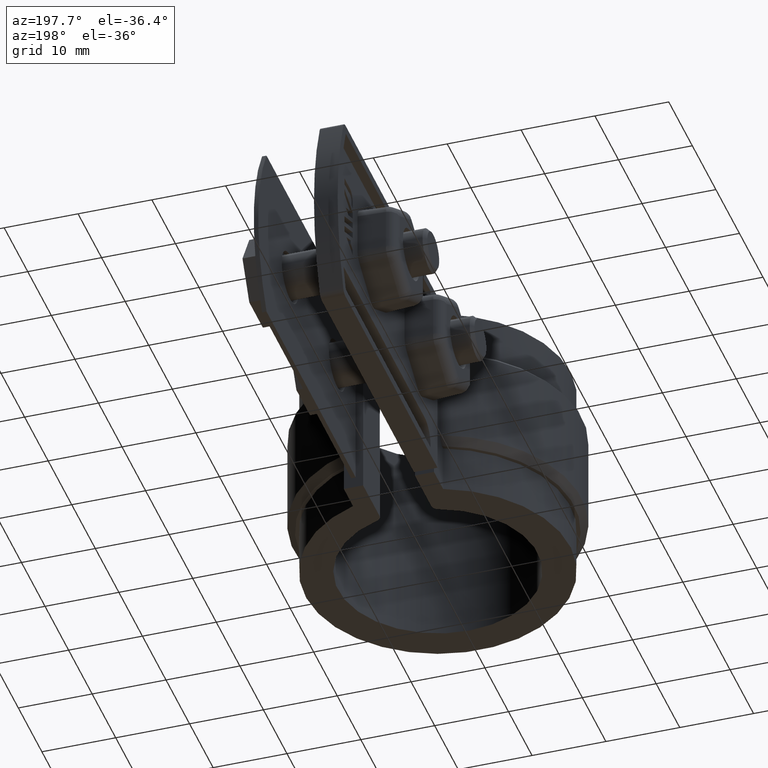
[diagram: clean part render]
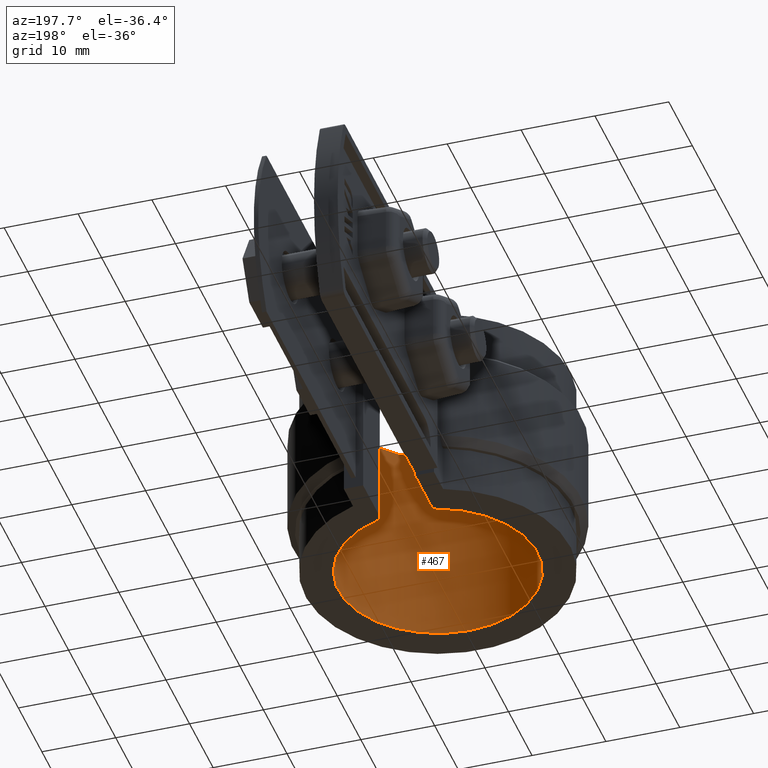
[diagram: same view with one face highlighted and labeled with its STEP entity id]
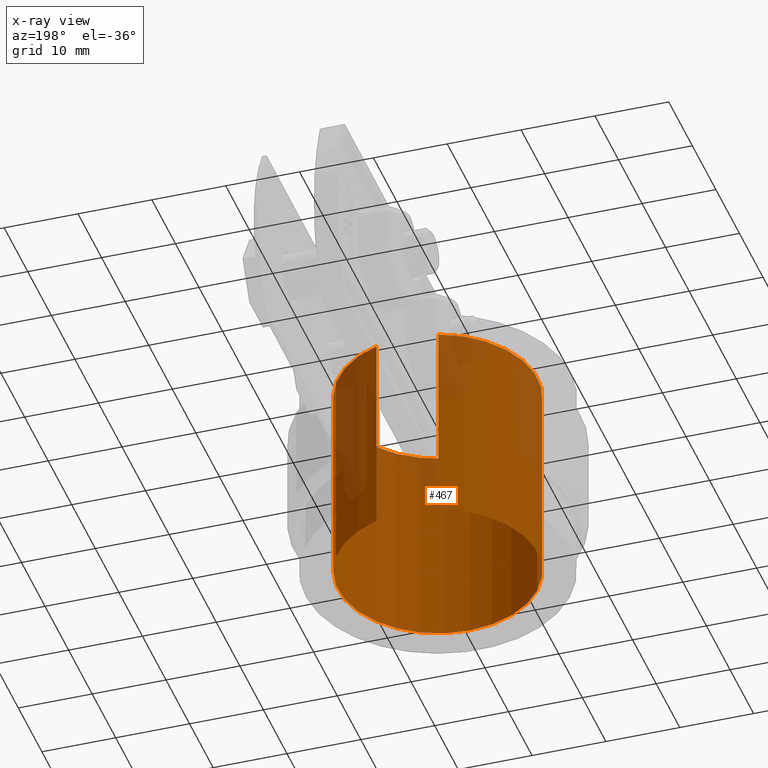
[diagram: x-ray of the same camera — body ghosted, the highlighted face saturated]
A machine part, auxiliary view. The second image highlights one B-rep face of the part: STEP entity #467.
The next image is the same camera in x-ray: the body ghosted, the highlighted face saturated — about 22% of this face is hidden behind the body in this view.
In plain terms, the highlighted cylindrical surface (partial cylindrical patch) has radius 13.5 mm, axis along (0, 0, -1).
Its self-contained STEP definition (entity closure, byte-faithful):
#467 = ADVANCED_FACE( '', ( #924 ), #925, .F. );
#924 = FACE_OUTER_BOUND( '', #1988, .T. );
#925 = CYLINDRICAL_SURFACE( '', #1989, 13.5000000000000 );
#1988 = EDGE_LOOP( '', ( #4351, #4352, #4353, #4354 ) );
#1989 = AXIS2_PLACEMENT_3D( '', #4355, #4356, #4357 );
#4351 = ORIENTED_EDGE( '', *, *, #6532, .F. );
#4352 = ORIENTED_EDGE( '', *, *, #6540, .T. );
#4353 = ORIENTED_EDGE( '', *, *, #6524, .T. );
#4354 = ORIENTED_EDGE( '', *, *, #6541, .T. );
#4355 = CARTESIAN_POINT( '', ( 0.000000000000000, 0.000000000000000, -64.1166745514317 ) );
#4356 = DIRECTION( '', ( 0.000000000000000, 0.000000000000000, -1.00000000000000 ) );
#4357 = DIRECTION( '', ( -1.00000000000000, 0.000000000000000, 0.000000000000000 ) );
#6524 = EDGE_CURVE( '', #7660, #7658, #7661, .F. );
#6532 = EDGE_CURVE( '', #7671, #7673, #7674, .F. );
#6540 = EDGE_CURVE( '', #7671, #7660, #7682, .T. );
#6541 = EDGE_CURVE( '', #7658, #7673, #7683, .F. );
#7658 = VERTEX_POINT( '', #10663 );
#7660 = VERTEX_POINT( '', #10665 );
#7661 = CIRCLE( '', #10666, 13.5000000000000 );
#7671 = VERTEX_POINT( '', #10681 );
#7673 = VERTEX_POINT( '', #10683 );
#7674 = CIRCLE( '', #10684, 13.5000000000000 );
#7682 = LINE( '', #10702, #10703 );
#7683 = LINE( '', #10704, #10705 );
#10663 = CARTESIAN_POINT( '', ( 4.18965517241380, 12.8334247002219, 1.50000000000000 ) );
#10665 = CARTESIAN_POINT( '', ( -4.18965517241379, 12.8334247002219, 1.50000000000000 ) );
#10666 = AXIS2_PLACEMENT_3D( '', #12560, #12561, #12562 );
#10681 = CARTESIAN_POINT( '', ( -4.18965517241379, 12.8334247002219, -26.5000000000000 ) );
#10683 = CARTESIAN_POINT( '', ( 4.18965517241380, 12.8334247002219, -26.5000000000000 ) );
#10684 = AXIS2_PLACEMENT_3D( '', #12574, #12575, #12576 );
#10702 = CARTESIAN_POINT( '', ( -4.18965517241378, 12.8334247002219, -64.1166745514317 ) );
#10703 = VECTOR( '', #12584, 1000.00000000000 );
#10704 = CARTESIAN_POINT( '', ( 4.18965517241380, 12.8334247002219, -64.1166745514317 ) );
#10705 = VECTOR( '', #12585, 1000.00000000000 );
#12560 = CARTESIAN_POINT( '', ( 0.000000000000000, 0.000000000000000, 1.50000000000000 ) );
#12561 = DIRECTION( '', ( 0.000000000000000, 0.000000000000000, -1.00000000000000 ) );
#12562 = DIRECTION( '', ( -1.00000000000000, 0.000000000000000, 0.000000000000000 ) );
#12574 = CARTESIAN_POINT( '', ( 0.000000000000000, 0.000000000000000, -26.5000000000000 ) );
#12575 = DIRECTION( '', ( 0.000000000000000, 0.000000000000000, -1.00000000000000 ) );
#12576 = DIRECTION( '', ( -1.00000000000000, 0.000000000000000, 0.000000000000000 ) );
#12584 = DIRECTION( '', ( 0.000000000000000, 0.000000000000000, 1.00000000000000 ) );
#12585 = DIRECTION( '', ( 0.000000000000000, 0.000000000000000, 1.00000000000000 ) );